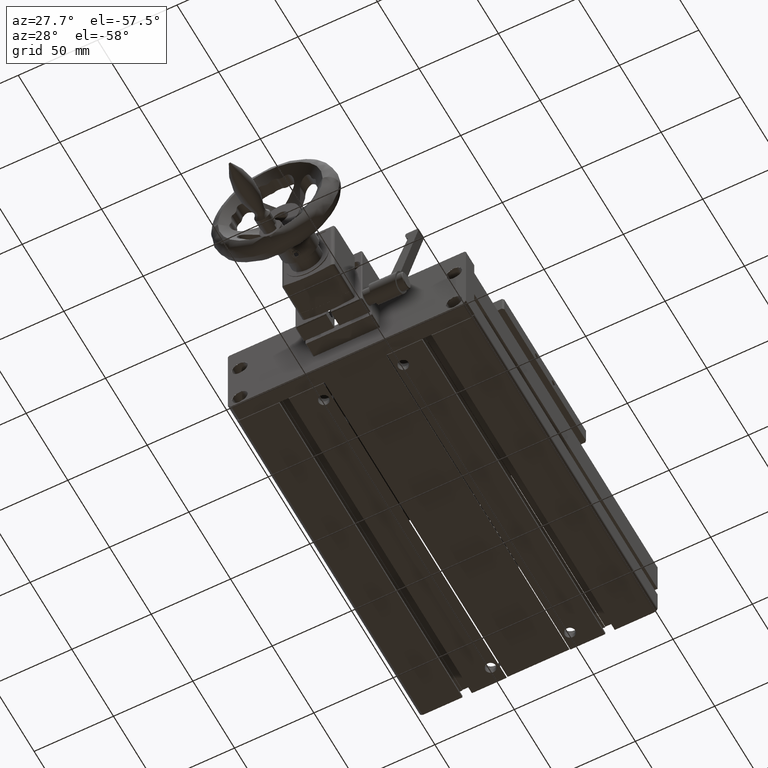
[diagram: clean part render]
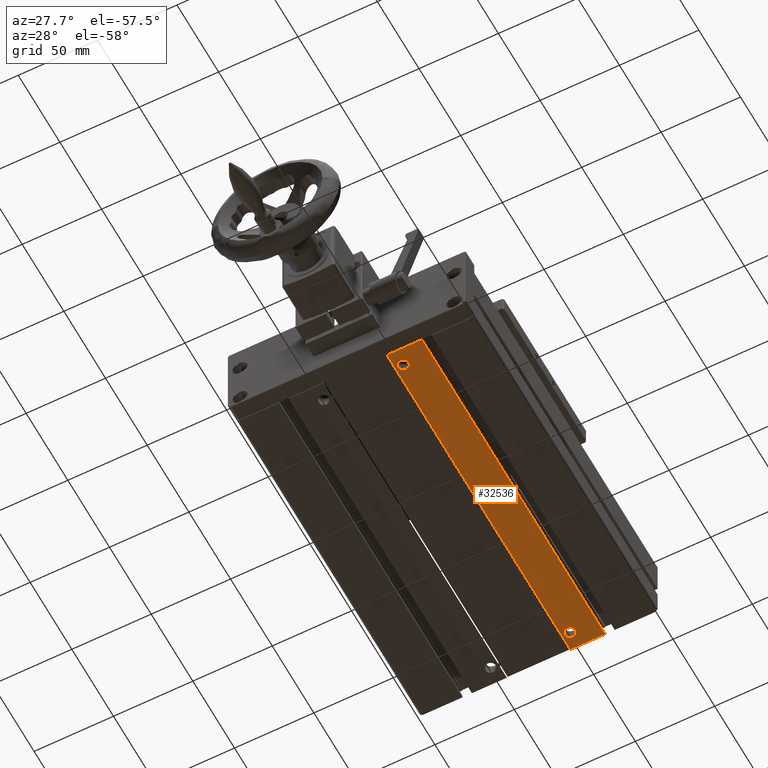
[diagram: same view with one face highlighted and labeled with its STEP entity id]
A machine part, auxiliary view. The second image highlights one B-rep face of the part: STEP entity #32536.
In plain terms, the highlighted planar face has unit normal (-0, -0, -1).
Its self-contained STEP definition (entity closure, byte-faithful):
#106 = ORIENTED_EDGE ( 'NONE', *, *, #20629, .T. ) ;
#1384 = CIRCLE ( 'NONE', #32237, 3.300000000000025135 ) ;
#2298 = CARTESIAN_POINT ( 'NONE',  ( -7.826479479800696026, -133.0472645979088497, -22.99999999999968736 ) ) ;
#2806 = EDGE_CURVE ( 'NONE', #31189, #35281, #9261, .T. ) ;
#3336 = EDGE_LOOP ( 'NONE', ( #18155, #5798 ) ) ;
#4782 = CARTESIAN_POINT ( 'NONE',  ( 14.17352052020009978, 86.95273540209106500, -22.99999999999968736 ) ) ;
#5798 = ORIENTED_EDGE ( 'NONE', *, *, #13095, .T. ) ;
#6213 = EDGE_CURVE ( 'NONE', #14387, #35281, #16194, .T. ) ;
#6319 = ORIENTED_EDGE ( 'NONE', *, *, #12301, .F. ) ;
#6614 = DIRECTION ( 'NONE',  ( 3.491481338843133355E-15, 2.438088387897967896E-29, 1.000000000000000000 ) ) ;
#8432 = CARTESIAN_POINT ( 'NONE',  ( -7.826479479799919758, 86.95273540209112184, -22.99999999999968736 ) ) ;
#9261 = LINE ( 'NONE', #12198, #27144 ) ;
#9605 = CARTESIAN_POINT ( 'NONE',  ( -7.826479479800696026, -133.0472645979088497, -22.99999999999968736 ) ) ;
#9612 = CIRCLE ( 'NONE', #18965, 3.300000000000025135 ) ;
#10469 = CARTESIAN_POINT ( 'NONE',  ( -7.826479479800696026, -133.0472645979088497, -22.99999999999968736 ) ) ;
#11165 = CARTESIAN_POINT ( 'NONE',  ( -7.826479479800696026, -133.0472645979088497, -22.99999999999968736 ) ) ;
#11649 = DIRECTION ( 'NONE',  ( 3.491481338843133355E-15, 2.438088387897967896E-29, 1.000000000000000000 ) ) ;
#12198 = CARTESIAN_POINT ( 'NONE',  ( -7.826479479799919758, 86.95273540209112184, -22.99999999999968736 ) ) ;
#12301 = EDGE_CURVE ( 'NONE', #22989, #31189, #24151, .T. ) ;
#12483 = EDGE_LOOP ( 'NONE', ( #29790, #6319, #106, #34265 ) ) ;
#12933 = AXIS2_PLACEMENT_3D ( 'NONE', #11165, #19222, #27546 ) ;
#13095 = EDGE_CURVE ( 'NONE', #14300, #32099, #24655, .T. ) ;
#13326 = DIRECTION ( 'NONE',  ( -3.548298019043441913E-15, -1.000000000000000000, 0.000000000000000000 ) ) ;
#14120 = ORIENTED_EDGE ( 'NONE', *, *, #27190, .T. ) ;
#14300 = VERTEX_POINT ( 'NONE', #27384 ) ;
#14387 = VERTEX_POINT ( 'NONE', #10469 ) ;
#14746 = DIRECTION ( 'NONE',  ( -3.548298019043441913E-15, -1.000000000000000000, 0.000000000000000000 ) ) ;
#16180 = AXIS2_PLACEMENT_3D ( 'NONE', #30747, #11649, #22592 ) ;
#16194 = LINE ( 'NONE', #2298, #21478 ) ;
#17489 = EDGE_LOOP ( 'NONE', ( #14120, #22039 ) ) ;
#18155 = ORIENTED_EDGE ( 'NONE', *, *, #27877, .T. ) ;
#18743 = DIRECTION ( 'NONE',  ( 3.491481338843133355E-15, 1.000000000000000000, -3.657132581846951845E-29 ) ) ;
#18965 = AXIS2_PLACEMENT_3D ( 'NONE', #28399, #26228, #14746 ) ;
#19222 = DIRECTION ( 'NONE',  ( -3.491481338843133355E-15, -2.438088387897967896E-29, -1.000000000000000000 ) ) ;
#19443 = EDGE_CURVE ( 'NONE', #31055, #27314, #31831, .T. ) ;
#20549 = CARTESIAN_POINT ( 'NONE',  ( 14.17352052019932351, -133.0472645979089350, -22.99999999999968736 ) ) ;
#20629 = EDGE_CURVE ( 'NONE', #22989, #14387, #29252, .T. ) ;
#21036 = CARTESIAN_POINT ( 'NONE',  ( -2.826479479798816197, -126.3472645979089037, -22.99999999999968736 ) ) ;
#21478 = VECTOR ( 'NONE', #18743, 1000.000000000000000 ) ;
#21605 = DIRECTION ( 'NONE',  ( 3.491481338843133355E-15, 1.000000000000000000, -3.657132581846951845E-29 ) ) ;
#22039 = ORIENTED_EDGE ( 'NONE', *, *, #19443, .T. ) ;
#22131 = FACE_OUTER_BOUND ( 'NONE', #12483, .T. ) ;
#22473 = PLANE ( 'NONE',  #12933 ) ;
#22592 = DIRECTION ( 'NONE',  ( -3.548298019043441913E-15, -1.000000000000000000, 0.000000000000000000 ) ) ;
#22989 = VERTEX_POINT ( 'NONE', #20549 ) ;
#23053 = CARTESIAN_POINT ( 'NONE',  ( -2.826479479798804650, -123.0472645979088782, -22.99999999999968736 ) ) ;
#23660 = VECTOR ( 'NONE', #21605, 1000.000000000000000 ) ;
#24073 = CARTESIAN_POINT ( 'NONE',  ( -2.826479479798138517, 76.95273540209109342, -22.99999999999968736 ) ) ;
#24151 = LINE ( 'NONE', #35577, #23660 ) ;
#24655 = CIRCLE ( 'NONE', #33315, 3.300000000000025135 ) ;
#25417 = VECTOR ( 'NONE', #34901, 1000.000000000000000 ) ;
#25943 = DIRECTION ( 'NONE',  ( -3.548298019043441913E-15, -1.000000000000000000, 0.000000000000000000 ) ) ;
#26147 = CARTESIAN_POINT ( 'NONE',  ( -2.826479479798766459, -119.7472645979088526, -22.99999999999968736 ) ) ;
#26228 = DIRECTION ( 'NONE',  ( 3.491481338843133355E-15, 2.438088387897967896E-29, 1.000000000000000000 ) ) ;
#27144 = VECTOR ( 'NONE', #28197, 1000.000000000000000 ) ;
#27190 = EDGE_CURVE ( 'NONE', #27314, #31055, #1384, .T. ) ;
#27314 = VERTEX_POINT ( 'NONE', #21036 ) ;
#27384 = CARTESIAN_POINT ( 'NONE',  ( -2.826479479798100325, 80.25273540209111900, -22.99999999999968736 ) ) ;
#27546 = DIRECTION ( 'NONE',  ( 3.491481338843133355E-15, 1.000000000000000000, -3.657132581846951845E-29 ) ) ;
#27877 = EDGE_CURVE ( 'NONE', #32099, #14300, #9612, .T. ) ;
#27907 = FACE_BOUND ( 'NONE', #3336, .T. ) ;
#28197 = DIRECTION ( 'NONE',  ( -1.000000000000000000, 3.491481338843133355E-15, 3.491481338843133355E-15 ) ) ;
#28399 = CARTESIAN_POINT ( 'NONE',  ( -2.826479479798138517, 76.95273540209109342, -22.99999999999968736 ) ) ;
#29252 = LINE ( 'NONE', #9605, #25417 ) ;
#29790 = ORIENTED_EDGE ( 'NONE', *, *, #2806, .F. ) ;
#30331 = CARTESIAN_POINT ( 'NONE',  ( -2.826479479798150063, 73.65273540209106784, -22.99999999999968736 ) ) ;
#30747 = CARTESIAN_POINT ( 'NONE',  ( -2.826479479798804650, -123.0472645979088782, -22.99999999999968736 ) ) ;
#31055 = VERTEX_POINT ( 'NONE', #26147 ) ;
#31189 = VERTEX_POINT ( 'NONE', #4782 ) ;
#31831 = CIRCLE ( 'NONE', #16180, 3.300000000000025135 ) ;
#32099 = VERTEX_POINT ( 'NONE', #30331 ) ;
#32237 = AXIS2_PLACEMENT_3D ( 'NONE', #23053, #6614, #25943 ) ;
#32536 = ADVANCED_FACE ( 'NONE', ( #27907, #35723, #22131 ), #22473, .T. ) ;
#33315 = AXIS2_PLACEMENT_3D ( 'NONE', #24073, #35127, #13326 ) ;
#34265 = ORIENTED_EDGE ( 'NONE', *, *, #6213, .T. ) ;
#34901 = DIRECTION ( 'NONE',  ( -1.000000000000000000, 3.491481338843133355E-15, 3.491481338843133355E-15 ) ) ;
#35127 = DIRECTION ( 'NONE',  ( 3.491481338843133355E-15, 2.438088387897967896E-29, 1.000000000000000000 ) ) ;
#35281 = VERTEX_POINT ( 'NONE', #8432 ) ;
#35577 = CARTESIAN_POINT ( 'NONE',  ( 14.17352052019932351, -133.0472645979089350, -22.99999999999968736 ) ) ;
#35723 = FACE_BOUND ( 'NONE', #17489, .T. ) ;